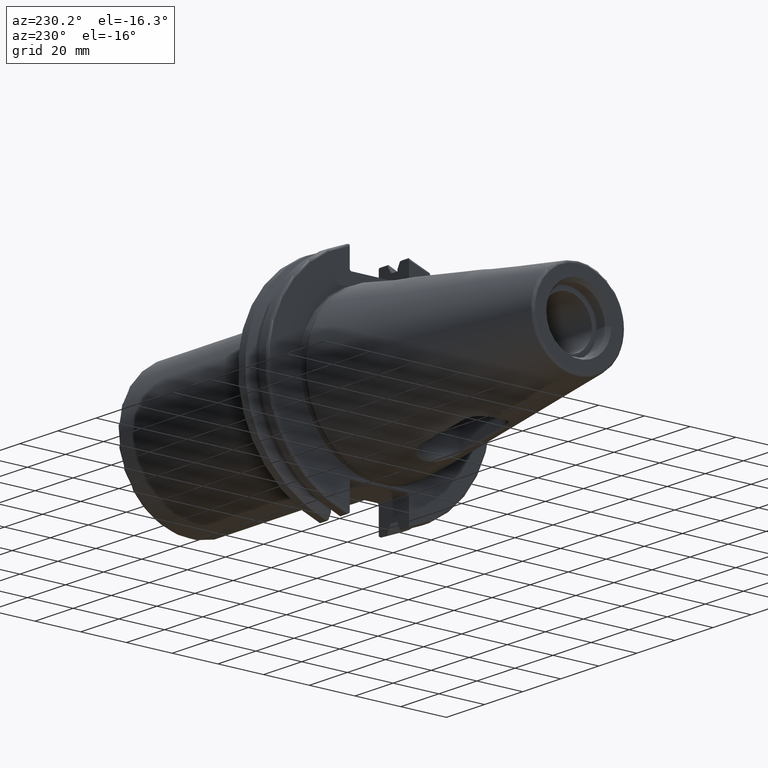
[diagram: clean part render]
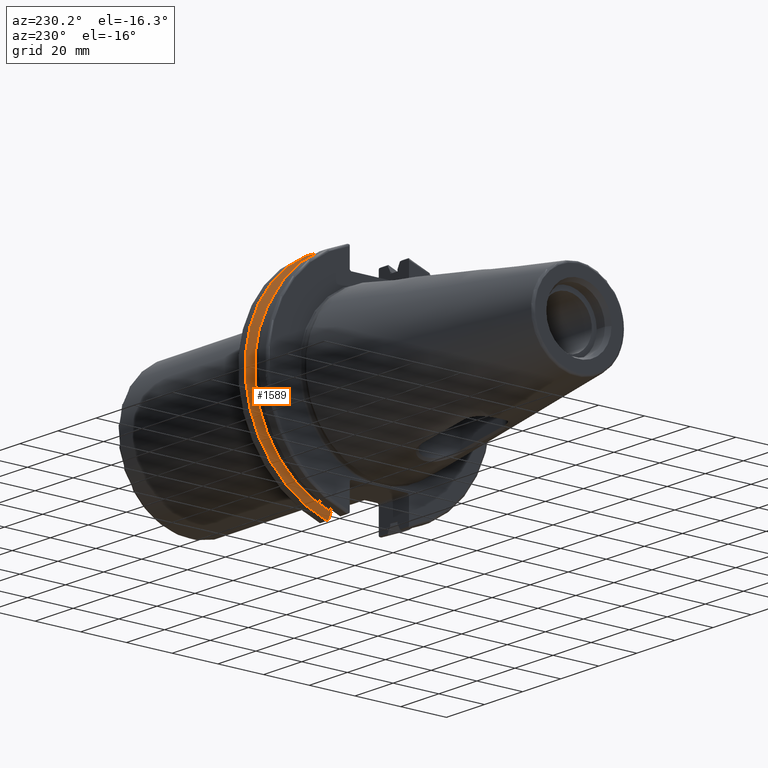
[diagram: same view with one face highlighted and labeled with its STEP entity id]
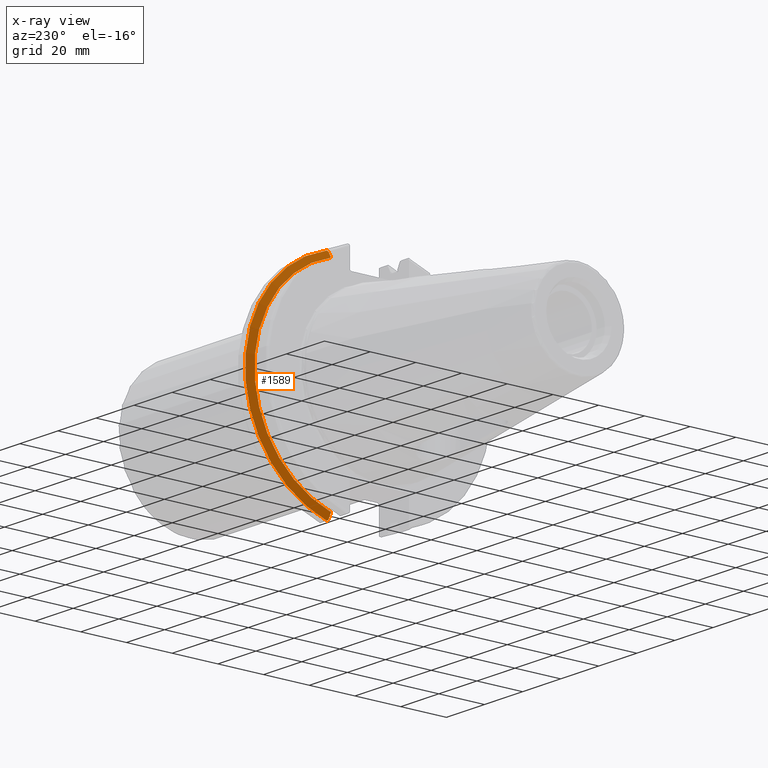
[diagram: x-ray of the same camera — body ghosted, the highlighted face saturated]
A machine part, auxiliary view. The second image highlights one B-rep face of the part: STEP entity #1589.
The next image is the same camera in x-ray: the body ghosted, the highlighted face saturated — about 0% of this face is hidden behind the body in this view.
In plain terms, the highlighted conical surface has half-angle 60 deg.
Its self-contained STEP definition (entity closure, byte-faithful):
#15=(
BOUNDED_CURVE()
B_SPLINE_CURVE(2,(#3190,#3191,#3192),.UNSPECIFIED.,.F.,.F.)
B_SPLINE_CURVE_WITH_KNOTS((3,3),(0.325260944932521,0.390084992222202),
 .UNSPECIFIED.)
CURVE()
GEOMETRIC_REPRESENTATION_ITEM()
RATIONAL_B_SPLINE_CURVE((1.00019140645994,1.00011477674864,1.))
REPRESENTATION_ITEM('')
);
#17=(
BOUNDED_CURVE()
B_SPLINE_CURVE(2,(#3215,#3216,#3217),.UNSPECIFIED.,.F.,.F.)
B_SPLINE_CURVE_WITH_KNOTS((3,3),(0.0558332664532001,0.331657177124504),
 .UNSPECIFIED.)
CURVE()
GEOMETRIC_REPRESENTATION_ITEM()
RATIONAL_B_SPLINE_CURVE((1.00012873636632,1.00038235574022,1.))
REPRESENTATION_ITEM('')
);
#25=(
BOUNDED_CURVE()
B_SPLINE_CURVE(2,(#3392,#3393,#3394),.UNSPECIFIED.,.F.,.F.)
B_SPLINE_CURVE_WITH_KNOTS((3,3),(0.,0.275823910671402),.UNSPECIFIED.)
CURVE()
GEOMETRIC_REPRESENTATION_ITEM()
RATIONAL_B_SPLINE_CURVE((1.,1.00038235574129,1.00012873636668))
REPRESENTATION_ITEM('')
);
#29=(
BOUNDED_CURVE()
B_SPLINE_CURVE(2,(#3423,#3424,#3425),.UNSPECIFIED.,.F.,.F.)
B_SPLINE_CURVE_WITH_KNOTS((3,3),(0.,0.0648240472897064),.UNSPECIFIED.)
CURVE()
GEOMETRIC_REPRESENTATION_ITEM()
RATIONAL_B_SPLINE_CURVE((1.,1.00011477674844,1.00019140645961))
REPRESENTATION_ITEM('')
);
#247=FACE_OUTER_BOUND('',#342,.T.);
#342=EDGE_LOOP('',(#1444,#1445,#1446,#1447,#1448,#1449));
#618=CIRCLE('',#1727,49.2125);
#623=CIRCLE('',#1738,46.4219772964944);
#737=VERTEX_POINT('',#3187);
#738=VERTEX_POINT('',#3189);
#744=VERTEX_POINT('',#3213);
#773=VERTEX_POINT('',#3389);
#774=VERTEX_POINT('',#3391);
#781=VERTEX_POINT('',#3421);
#937=EDGE_CURVE('',#737,#738,#15,.T.);
#946=EDGE_CURVE('',#737,#744,#17,.T.);
#993=EDGE_CURVE('',#774,#773,#25,.T.);
#1005=EDGE_CURVE('',#781,#773,#29,.T.);
#1006=EDGE_CURVE('',#738,#781,#618,.T.);
#1015=EDGE_CURVE('',#744,#774,#623,.T.);
#1444=ORIENTED_EDGE('',*,*,#937,.F.);
#1445=ORIENTED_EDGE('',*,*,#946,.T.);
#1446=ORIENTED_EDGE('',*,*,#1015,.T.);
#1447=ORIENTED_EDGE('',*,*,#993,.T.);
#1448=ORIENTED_EDGE('',*,*,#1005,.F.);
#1449=ORIENTED_EDGE('',*,*,#1006,.F.);
#1510=CONICAL_SURFACE('',#1737,47.8172386482472,1.0471975511966);
#1589=ADVANCED_FACE('',(#247),#1510,.T.);
#1727=AXIS2_PLACEMENT_3D('',#3427,#2064,#2065);
#1737=AXIS2_PLACEMENT_3D('',#3447,#2087,#2088);
#1738=AXIS2_PLACEMENT_3D('',#3448,#2089,#2090);
#2064=DIRECTION('center_axis',(1.,0.,0.));
#2065=DIRECTION('ref_axis',(0.,0.,-1.));
#2087=DIRECTION('center_axis',(1.,0.,0.));
#2088=DIRECTION('ref_axis',(0.,1.,0.));
#2089=DIRECTION('center_axis',(1.,0.,0.));
#2090=DIRECTION('ref_axis',(0.,0.,-1.));
#3187=CARTESIAN_POINT('',(14.3818103943757,12.95,-46.9780755322918));
#3189=CARTESIAN_POINT('',(14.6602090340487,13.4317035994433,-47.3440544806494));
#3190=CARTESIAN_POINT('Ctrl Pts',(14.3818103943757,12.95,-46.9780755322918));
#3191=CARTESIAN_POINT('Ctrl Pts',(14.5199310333617,13.1896660169965,-47.1601640966264));
#3192=CARTESIAN_POINT('Ctrl Pts',(14.6602090340487,13.4317035994433,-47.3440544806494));
#3213=CARTESIAN_POINT('',(13.0491,12.95,-44.5791147973605));
#3215=CARTESIAN_POINT('Ctrl Pts',(14.3818103943757,12.95,-46.9780755322918));
#3216=CARTESIAN_POINT('Ctrl Pts',(13.6979955094851,12.95,-45.7494966802933));
#3217=CARTESIAN_POINT('Ctrl Pts',(13.0491,12.95,-44.5791147973604));
#3389=CARTESIAN_POINT('',(14.3818103943757,12.95,46.9780755322918));
#3391=CARTESIAN_POINT('',(13.0491,12.95,44.5791147973604));
#3392=CARTESIAN_POINT('Ctrl Pts',(13.0491,12.95,44.5791147973604));
#3393=CARTESIAN_POINT('Ctrl Pts',(13.6979955094846,12.95,45.7494966802924));
#3394=CARTESIAN_POINT('Ctrl Pts',(14.3818103943757,12.95,46.9780755322918));
#3421=CARTESIAN_POINT('',(14.6602090340487,13.4317035994433,47.3440544806494));
#3423=CARTESIAN_POINT('Ctrl Pts',(14.6602090340487,13.4317035994433,47.3440544806494));
#3424=CARTESIAN_POINT('Ctrl Pts',(14.5199310333618,13.1896660169966,47.1601640966264));
#3425=CARTESIAN_POINT('Ctrl Pts',(14.3818103943757,12.95,46.9780755322918));
#3427=CARTESIAN_POINT('Origin',(14.6602090340487,0.,0.));
#3447=CARTESIAN_POINT('Origin',(13.8546545170244,0.,0.));
#3448=CARTESIAN_POINT('Origin',(13.0491,0.,0.));